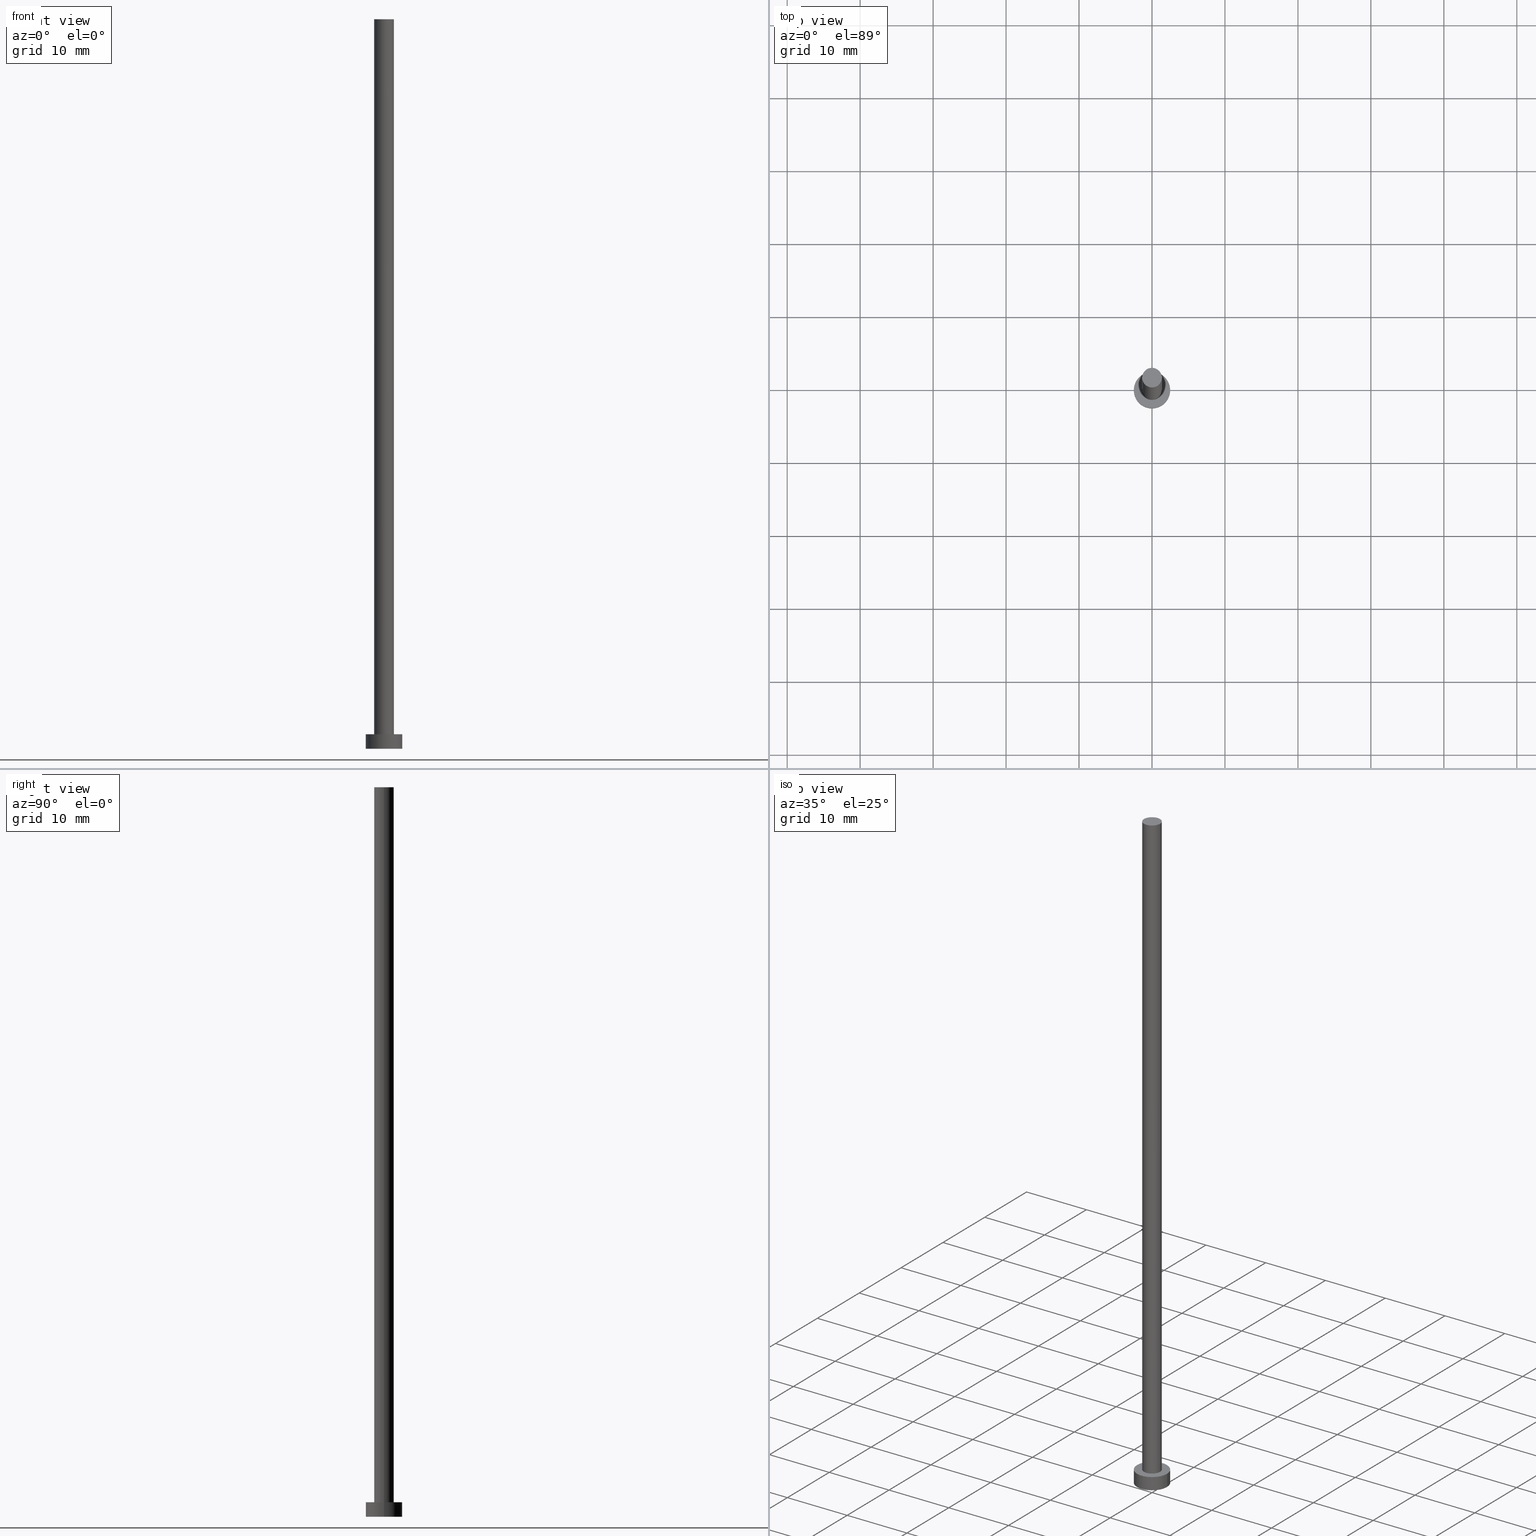
[diagram: canonical four-view strip — front | top / right | iso, engineering-drawing reading convention]
A machine part, canonical four-view strip (front | top / right | iso — engineering-drawing reading convention). The complete STEP part file that produces these views, byte-faithful:
ISO-10303-21;
HEADER;
FILE_DESCRIPTION (( 'STEP AP203' ),
    '1' );
FILE_NAME ('a402.STEP',
    '2026-02-06T12:31:36',
    ( '' ),
    ( '' ),
    'SwSTEP 2.0',
    'SolidWorks 2019',
    '' );
FILE_SCHEMA (( 'CONFIG_CONTROL_DESIGN' ));
ENDSEC;

DATA;
#1 = DATE_AND_TIME ( #91, #43 ) ;
#2 = SECURITY_CLASSIFICATION ( '', '', #29 ) ;
#3 = ORIENTED_EDGE ( 'NONE', *, *, #155, .F. ) ;
#4 =( NAMED_UNIT ( * ) PLANE_ANGLE_UNIT ( ) SI_UNIT ( $, .RADIAN. ) );
#5 = DIRECTION ( 'NONE',  ( 1.000000000000000000, 0.000000000000000000, 0.000000000000000000 ) ) ;
#6 = CARTESIAN_POINT ( 'NONE',  ( 0.000000000000000000, 0.000000000000000000, 100.0000000000000000 ) ) ;
#7 = COORDINATED_UNIVERSAL_TIME_OFFSET ( 1, 0, .AHEAD. ) ;
#8 = DIRECTION ( 'NONE',  ( 0.000000000000000000, 0.000000000000000000, 1.000000000000000000 ) ) ;
#9 = CARTESIAN_POINT ( 'NONE',  ( 0.000000000000000000, 0.000000000000000000, 100.0000000000000000 ) ) ;
#10 = ORIENTED_EDGE ( 'NONE', *, *, #236, .T. ) ;
#11 = PERSON_AND_ORGANIZATION ( #180, #253 ) ;
#12 = CARTESIAN_POINT ( 'NONE',  ( 2.500000000000000000, 3.061616997868383141E-16, 0.000000000000000000 ) ) ;
#13 = CYLINDRICAL_SURFACE ( 'NONE', #217, 1.350000000000000089 ) ;
#14 = VERTEX_POINT ( 'NONE', #79 ) ;
#15 = DATE_AND_TIME ( #250, #136 ) ;
#16 = PERSON_AND_ORGANIZATION ( #180, #253 ) ;
#17 = LINE ( 'NONE', #210, #116 ) ;
#18 = ADVANCED_FACE ( 'NONE', ( #38 ), #219, .T. ) ;
#19 = DIRECTION ( 'NONE',  ( -0.000000000000000000, -0.000000000000000000, -1.000000000000000000 ) ) ;
#20 = DIRECTION ( 'NONE',  ( -0.000000000000000000, -0.000000000000000000, -1.000000000000000000 ) ) ;
#21 = CIRCLE ( 'NONE', #58, 2.500000000000000000 ) ;
#22 = CC_DESIGN_SECURITY_CLASSIFICATION ( #2, ( #47 ) ) ;
#23 = CIRCLE ( 'NONE', #77, 1.350000000000000089 ) ;
#24 = MANIFOLD_SOLID_BREP ( 'P�idat vysunut�m3', #168 ) ;
#25 = ADVANCED_FACE ( 'NONE', ( #238 ), #103, .T. ) ;
#26 = AXIS2_PLACEMENT_3D ( 'NONE', #57, #92, #146 ) ;
#27 = DIRECTION ( 'NONE',  ( 0.000000000000000000, 0.000000000000000000, 1.000000000000000000 ) ) ;
#28 = EDGE_LOOP ( 'NONE', ( #111, #45 ) ) ;
#29 = SECURITY_CLASSIFICATION_LEVEL ( 'unclassified' ) ;
#30 = CARTESIAN_POINT ( 'NONE',  ( 0.000000000000000000, 0.000000000000000000, 100.0000000000000000 ) ) ;
#31 = ORIENTED_EDGE ( 'NONE', *, *, #251, .F. ) ;
#32 = DIRECTION ( 'NONE',  ( 1.000000000000000000, 0.000000000000000000, 0.000000000000000000 ) ) ;
#33 = ORIENTED_EDGE ( 'NONE', *, *, #198, .F. ) ;
#34 = PERSON_AND_ORGANIZATION ( #180, #253 ) ;
#35 = DIRECTION ( 'NONE',  ( 0.000000000000000000, 0.000000000000000000, 1.000000000000000000 ) ) ;
#36 = LINE ( 'NONE', #122, #196 ) ;
#37 = EDGE_CURVE ( 'NONE', #147, #177, #59, .T. ) ;
#38 = FACE_OUTER_BOUND ( 'NONE', #211, .T. ) ;
#39 = CIRCLE ( 'NONE', #89, 2.500000000000000000 ) ;
#40 = PLANE ( 'NONE',  #173 ) ;
#41 = LOCAL_TIME ( 13, 31, 36.00000000000000000, #231 ) ;
#42 = CC_DESIGN_PERSON_AND_ORGANIZATION_ASSIGNMENT ( #124, #101, ( #174 ) ) ;
#43 = LOCAL_TIME ( 13, 31, 36.00000000000000000, #53 ) ;
#44 = AXIS2_PLACEMENT_3D ( 'NONE', #62, #201, #99 ) ;
#45 = ORIENTED_EDGE ( 'NONE', *, *, #218, .F. ) ;
#46 = DIRECTION ( 'NONE',  ( 0.000000000000000000, 0.000000000000000000, 1.000000000000000000 ) ) ;
#47 = PRODUCT_DEFINITION_FORMATION_WITH_SPECIFIED_SOURCE ( 'LIBOVOLN�', '', #174, .NOT_KNOWN. ) ;
#48 = ORIENTED_EDGE ( 'NONE', *, *, #155, .T. ) ;
#49 = APPROVAL_DATE_TIME ( #121, #134 ) ;
#50 = FACE_OUTER_BOUND ( 'NONE', #142, .T. ) ;
#51 = CIRCLE ( 'NONE', #197, 1.350000000000000089 ) ;
#52 = ORIENTED_EDGE ( 'NONE', *, *, #186, .T. ) ;
#53 = COORDINATED_UNIVERSAL_TIME_OFFSET ( 1, 0, .AHEAD. ) ;
#54 = CC_DESIGN_PERSON_AND_ORGANIZATION_ASSIGNMENT ( #34, #73, ( #47 ) ) ;
#55 = PLANE ( 'NONE',  #61 ) ;
#56 = ORIENTED_EDGE ( 'NONE', *, *, #255, .F. ) ;
#57 = CARTESIAN_POINT ( 'NONE',  ( 0.000000000000000000, 0.000000000000000000, 2.000000000000000000 ) ) ;
#58 = AXIS2_PLACEMENT_3D ( 'NONE', #125, #46, #32 ) ;
#59 = CIRCLE ( 'NONE', #157, 1.350000000000000089 ) ;
#60 = AXIS2_PLACEMENT_3D ( 'NONE', #209, #27, #239 ) ;
#61 = AXIS2_PLACEMENT_3D ( 'NONE', #30, #144, #112 ) ;
#62 = CARTESIAN_POINT ( 'NONE',  ( 0.000000000000000000, 0.000000000000000000, 100.0000000000000000 ) ) ;
#63 =( LENGTH_UNIT ( ) NAMED_UNIT ( * ) SI_UNIT ( .MILLI., .METRE. ) );
#64 = CARTESIAN_POINT ( 'NONE',  ( 0.000000000000000000, 0.000000000000000000, 2.000000000000000000 ) ) ;
#65 = ORIENTED_EDGE ( 'NONE', *, *, #186, .F. ) ;
#66 = DIRECTION ( 'NONE',  ( 1.000000000000000000, 0.000000000000000000, -0.000000000000000000 ) ) ;
#67 = CC_DESIGN_APPROVAL ( #113, ( #47 ) ) ;
#68 = ADVANCED_FACE ( 'NONE', ( #50 ), #179, .T. ) ;
#69 = CARTESIAN_POINT ( 'NONE',  ( 2.500000000000000000, 3.061616997868383141E-16, 2.000000000000000000 ) ) ;
#70 = LOCAL_TIME ( 13, 31, 36.00000000000000000, #188 ) ;
#71 = ORIENTED_EDGE ( 'NONE', *, *, #205, .F. ) ;
#72 = DIRECTION ( 'NONE',  ( 0.000000000000000000, 0.000000000000000000, 1.000000000000000000 ) ) ;
#73 = PERSON_AND_ORGANIZATION_ROLE ( 'design_supplier' ) ;
#74 = APPROVAL_PERSON_ORGANIZATION ( #138, #113, #199 ) ;
#75 = CC_DESIGN_DATE_AND_TIME_ASSIGNMENT ( #104, #131, ( #2 ) ) ;
#76 = PRODUCT_DEFINITION_SHAPE ( 'NONE', 'NONE',  #153 ) ;
#77 = AXIS2_PLACEMENT_3D ( 'NONE', #9, #160, #5 ) ;
#78 = ADVANCED_FACE ( 'NONE', ( #149 ), #13, .T. ) ;
#79 = CARTESIAN_POINT ( 'NONE',  ( -2.500000000000000000, 0.000000000000000000, 2.000000000000000000 ) ) ;
#80 = DIRECTION ( 'NONE',  ( 1.000000000000000000, 0.000000000000000000, -0.000000000000000000 ) ) ;
#81 = DIRECTION ( 'NONE',  ( -0.000000000000000000, -0.000000000000000000, -1.000000000000000000 ) ) ;
#82 = ORIENTED_EDGE ( 'NONE', *, *, #135, .T. ) ;
#83 = PERSON_AND_ORGANIZATION ( #180, #253 ) ;
#84 = CARTESIAN_POINT ( 'NONE',  ( 0.000000000000000000, 0.000000000000000000, 0.000000000000000000 ) ) ;
#85 = EDGE_CURVE ( 'NONE', #177, #147, #23, .T. ) ;
#86 = CARTESIAN_POINT ( 'NONE',  ( 0.000000000000000000, 0.000000000000000000, 2.000000000000000000 ) ) ;
#87 = DATE_AND_TIME ( #178, #70 ) ;
#88 = DIRECTION ( 'NONE',  ( 1.000000000000000000, 0.000000000000000000, 0.000000000000000000 ) ) ;
#89 = AXIS2_PLACEMENT_3D ( 'NONE', #159, #8, #165 ) ;
#90 = ORIENTED_EDGE ( 'NONE', *, *, #255, .T. ) ;
#91 = CALENDAR_DATE ( 2026, 6, 2 ) ;
#92 = DIRECTION ( 'NONE',  ( 0.000000000000000000, 0.000000000000000000, 1.000000000000000000 ) ) ;
#93 = EDGE_LOOP ( 'NONE', ( #3, #163, #52, #126 ) ) ;
#94 = FACE_OUTER_BOUND ( 'NONE', #183, .T. ) ;
#95 = VECTOR ( 'NONE', #193, 1000.000000000000000 ) ;
#96 = APPROVAL_ROLE ( '' ) ;
#97 = COORDINATED_UNIVERSAL_TIME_OFFSET ( 1, 0, .AHEAD. ) ;
#98 = FACE_OUTER_BOUND ( 'NONE', #248, .T. ) ;
#99 = DIRECTION ( 'NONE',  ( -1.000000000000000000, 0.000000000000000000, 0.000000000000000000 ) ) ;
#100 = PERSON_AND_ORGANIZATION_ROLE ( 'classification_officer' ) ;
#101 = PERSON_AND_ORGANIZATION_ROLE ( 'design_owner' ) ;
#102 = CARTESIAN_POINT ( 'NONE',  ( 2.500000000000000000, 3.061616997868383141E-16, 2.000000000000000000 ) ) ;
#103 = CYLINDRICAL_SURFACE ( 'NONE', #44, 1.350000000000000089 ) ;
#104 = DATE_AND_TIME ( #172, #133 ) ;
#105 = DIRECTION ( 'NONE',  ( -1.000000000000000000, 0.000000000000000000, 0.000000000000000000 ) ) ;
#106 = VERTEX_POINT ( 'NONE', #240 ) ;
#107 = UNCERTAINTY_MEASURE_WITH_UNIT (LENGTH_MEASURE( 1.000000000000000082E-05 ), #63, 'distance_accuracy_value', 'NONE');
#108 = APPLICATION_PROTOCOL_DEFINITION ( 'international standard', 'config_control_design', 1994, #214 ) ;
#109 = DIRECTION ( 'NONE',  ( 0.000000000000000000, 0.000000000000000000, 1.000000000000000000 ) ) ;
#110 = AXIS2_PLACEMENT_3D ( 'NONE', #242, #35, #143 ) ;
#111 = ORIENTED_EDGE ( 'NONE', *, *, #200, .F. ) ;
#112 = DIRECTION ( 'NONE',  ( 1.000000000000000000, 0.000000000000000000, -0.000000000000000000 ) ) ;
#113 = APPROVAL ( #119, 'NEUR�EN�' ) ;
#114 = ADVANCED_BREP_SHAPE_REPRESENTATION ( 'a402', ( #24, #110 ), #190 ) ;
#115 = ADVANCED_FACE ( 'NONE', ( #162 ), #55, .T. ) ;
#116 = VECTOR ( 'NONE', #182, 1000.000000000000000 ) ;
#117 = VECTOR ( 'NONE', #145, 1000.000000000000000 ) ;
#118 = CC_DESIGN_PERSON_AND_ORGANIZATION_ASSIGNMENT ( #11, #100, ( #2 ) ) ;
#119 = APPROVAL_STATUS ( 'not_yet_approved' ) ;
#120 = EDGE_LOOP ( 'NONE', ( #244, #48, #130, #65 ) ) ;
#121 = DATE_AND_TIME ( #127, #41 ) ;
#122 = CARTESIAN_POINT ( 'NONE',  ( -1.350000000000000089, 0.000000000000000000, 100.0000000000000000 ) ) ;
#123 = VERTEX_POINT ( 'NONE', #229 ) ;
#124 = PERSON_AND_ORGANIZATION ( #180, #253 ) ;
#125 = CARTESIAN_POINT ( 'NONE',  ( 0.000000000000000000, 0.000000000000000000, 0.000000000000000000 ) ) ;
#126 = ORIENTED_EDGE ( 'NONE', *, *, #200, .T. ) ;
#127 = CALENDAR_DATE ( 2026, 6, 2 ) ;
#128 = DIRECTION ( 'NONE',  ( 0.000000000000000000, 0.000000000000000000, 1.000000000000000000 ) ) ;
#129 = CARTESIAN_POINT ( 'NONE',  ( 1.350000000000000089, 1.653273178848926867E-16, 100.0000000000000000 ) ) ;
#130 = ORIENTED_EDGE ( 'NONE', *, *, #218, .T. ) ;
#131 = DATE_TIME_ROLE ( 'classification_date' ) ;
#132 = FACE_BOUND ( 'NONE', #28, .T. ) ;
#133 = LOCAL_TIME ( 13, 31, 36.00000000000000000, #7 ) ;
#134 = APPROVAL ( #140, 'NEUR�EN�' ) ;
#135 = EDGE_CURVE ( 'NONE', #204, #223, #21, .T. ) ;
#136 = LOCAL_TIME ( 13, 31, 36.00000000000000000, #97 ) ;
#137 = APPROVAL_PERSON_ORGANIZATION ( #181, #175, #96 ) ;
#138 = PERSON_AND_ORGANIZATION ( #180, #253 ) ;
#139 = VERTEX_POINT ( 'NONE', #102 ) ;
#140 = APPROVAL_STATUS ( 'not_yet_approved' ) ;
#141 = CARTESIAN_POINT ( 'NONE',  ( -1.350000000000000089, 0.000000000000000000, 100.0000000000000000 ) ) ;
#142 = EDGE_LOOP ( 'NONE', ( #56, #187, #10, #31 ) ) ;
#143 = DIRECTION ( 'NONE',  ( 1.000000000000000000, 0.000000000000000000, 0.000000000000000000 ) ) ;
#144 = DIRECTION ( 'NONE',  ( 0.000000000000000000, 0.000000000000000000, 1.000000000000000000 ) ) ;
#145 = DIRECTION ( 'NONE',  ( -0.000000000000000000, -0.000000000000000000, -1.000000000000000000 ) ) ;
#146 = DIRECTION ( 'NONE',  ( 1.000000000000000000, 0.000000000000000000, 0.000000000000000000 ) ) ;
#147 = VERTEX_POINT ( 'NONE', #141 ) ;
#148 = PRODUCT_RELATED_PRODUCT_CATEGORY ( 'detail', '', ( #174 ) ) ;
#149 = FACE_OUTER_BOUND ( 'NONE', #93, .T. ) ;
#150 = APPROVAL_DATE_TIME ( #15, #113 ) ;
#151 = APPROVAL_PERSON_ORGANIZATION ( #83, #134, #241 ) ;
#152 = CIRCLE ( 'NONE', #26, 1.350000000000000089 ) ;
#153 = PRODUCT_DEFINITION ( 'NEZN�M�', '', #47, #224 ) ;
#154 = AXIS2_PLACEMENT_3D ( 'NONE', #185, #72, #88 ) ;
#155 = EDGE_CURVE ( 'NONE', #177, #123, #17, .T. ) ;
#156 = CARTESIAN_POINT ( 'NONE',  ( -2.500000000000000000, 0.000000000000000000, 2.000000000000000000 ) ) ;
#157 = AXIS2_PLACEMENT_3D ( 'NONE', #6, #221, #226 ) ;
#158 = ORIENTED_EDGE ( 'NONE', *, *, #251, .T. ) ;
#159 = CARTESIAN_POINT ( 'NONE',  ( 0.000000000000000000, 0.000000000000000000, 0.000000000000000000 ) ) ;
#160 = DIRECTION ( 'NONE',  ( 0.000000000000000000, 0.000000000000000000, 1.000000000000000000 ) ) ;
#161 = ORIENTED_EDGE ( 'NONE', *, *, #135, .F. ) ;
#162 = FACE_OUTER_BOUND ( 'NONE', #192, .T. ) ;
#163 = ORIENTED_EDGE ( 'NONE', *, *, #37, .F. ) ;
#164 = PERSON_AND_ORGANIZATION_ROLE ( 'creator' ) ;
#165 = DIRECTION ( 'NONE',  ( 1.000000000000000000, 0.000000000000000000, 0.000000000000000000 ) ) ;
#166 = DIRECTION ( 'NONE',  ( 1.000000000000000000, 0.000000000000000000, 0.000000000000000000 ) ) ;
#167 = CC_DESIGN_PERSON_AND_ORGANIZATION_ASSIGNMENT ( #16, #228, ( #153 ) ) ;
#168 = CLOSED_SHELL ( 'NONE', ( #25, #68, #18, #222, #194, #78, #115 ) ) ;
#169 = ORIENTED_EDGE ( 'NONE', *, *, #236, .F. ) ;
#170 = CARTESIAN_POINT ( 'NONE',  ( 0.000000000000000000, 0.000000000000000000, 2.000000000000000000 ) ) ;
#171 = DIRECTION ( 'NONE',  ( -1.000000000000000000, 0.000000000000000000, 0.000000000000000000 ) ) ;
#172 = CALENDAR_DATE ( 2026, 6, 2 ) ;
#173 = AXIS2_PLACEMENT_3D ( 'NONE', #84, #243, #66 ) ;
#174 = PRODUCT ( 'a402', 'a402', '', ( #202 ) ) ;
#175 = APPROVAL ( #184, 'NEUR�EN�' ) ;
#176 = AXIS2_PLACEMENT_3D ( 'NONE', #64, #128, #80 ) ;
#177 = VERTEX_POINT ( 'NONE', #129 ) ;
#178 = CALENDAR_DATE ( 2026, 6, 2 ) ;
#179 = CYLINDRICAL_SURFACE ( 'NONE', #191, 2.500000000000000000 ) ;
#180 = PERSON ( 'NEUR�EN�', 'NEUR�EN�', 'NEUR�EN�', ('NEUR�EN�'), ('NEUR�EN�'), ('NEUR�EN�') ) ;
#181 = PERSON_AND_ORGANIZATION ( #180, #253 ) ;
#182 = DIRECTION ( 'NONE',  ( -0.000000000000000000, -0.000000000000000000, -1.000000000000000000 ) ) ;
#183 = EDGE_LOOP ( 'NONE', ( #227, #90 ) ) ;
#184 = APPROVAL_STATUS ( 'not_yet_approved' ) ;
#185 = CARTESIAN_POINT ( 'NONE',  ( 0.000000000000000000, 0.000000000000000000, 2.000000000000000000 ) ) ;
#186 = EDGE_CURVE ( 'NONE', #147, #106, #36, .T. ) ;
#187 = ORIENTED_EDGE ( 'NONE', *, *, #205, .T. ) ;
#188 = COORDINATED_UNIVERSAL_TIME_OFFSET ( 1, 0, .AHEAD. ) ;
#189 = LINE ( 'NONE', #69, #95 ) ;
#190 =( GEOMETRIC_REPRESENTATION_CONTEXT ( 3 ) GLOBAL_UNCERTAINTY_ASSIGNED_CONTEXT ( ( #107 ) ) GLOBAL_UNIT_ASSIGNED_CONTEXT ( ( #63, #4, #220 ) ) REPRESENTATION_CONTEXT ( 'NONE', 'WORKASPACE' ) );
#191 = AXIS2_PLACEMENT_3D ( 'NONE', #170, #203, #105 ) ;
#192 = EDGE_LOOP ( 'NONE', ( #230, #208 ) ) ;
#193 = DIRECTION ( 'NONE',  ( -0.000000000000000000, -0.000000000000000000, -1.000000000000000000 ) ) ;
#194 = ADVANCED_FACE ( 'NONE', ( #98 ), #40, .F. ) ;
#195 = CC_DESIGN_DATE_AND_TIME_ASSIGNMENT ( #1, #237, ( #153 ) ) ;
#196 = VECTOR ( 'NONE', #81, 1000.000000000000000 ) ;
#197 = AXIS2_PLACEMENT_3D ( 'NONE', #232, #109, #166 ) ;
#198 = EDGE_CURVE ( 'NONE', #14, #139, #235, .T. ) ;
#199 = APPROVAL_ROLE ( '' ) ;
#200 = EDGE_CURVE ( 'NONE', #106, #123, #51, .T. ) ;
#201 = DIRECTION ( 'NONE',  ( -0.000000000000000000, -0.000000000000000000, -1.000000000000000000 ) ) ;
#202 = MECHANICAL_CONTEXT ( 'NONE', #214, 'mechanical' ) ;
#203 = DIRECTION ( 'NONE',  ( -0.000000000000000000, -0.000000000000000000, -1.000000000000000000 ) ) ;
#204 = VERTEX_POINT ( 'NONE', #247 ) ;
#205 = EDGE_CURVE ( 'NONE', #139, #223, #189, .T. ) ;
#206 = APPLICATION_PROTOCOL_DEFINITION ( 'international standard', 'config_control_design', 1994, #252 ) ;
#207 = DIRECTION ( 'NONE',  ( -1.000000000000000000, 0.000000000000000000, 0.000000000000000000 ) ) ;
#208 = ORIENTED_EDGE ( 'NONE', *, *, #85, .T. ) ;
#209 = CARTESIAN_POINT ( 'NONE',  ( 0.000000000000000000, 0.000000000000000000, 2.000000000000000000 ) ) ;
#210 = CARTESIAN_POINT ( 'NONE',  ( 1.350000000000000089, 1.653273178848926867E-16, 100.0000000000000000 ) ) ;
#211 = EDGE_LOOP ( 'NONE', ( #71, #33, #158, #82 ) ) ;
#212 = PLANE ( 'NONE',  #176 ) ;
#213 = AXIS2_PLACEMENT_3D ( 'NONE', #86, #19, #171 ) ;
#214 = APPLICATION_CONTEXT ( 'configuration controlled 3d designs of mechanical parts and assemblies' ) ;
#215 = CC_DESIGN_APPROVAL ( #175, ( #153 ) ) ;
#216 = CC_DESIGN_PERSON_AND_ORGANIZATION_ASSIGNMENT ( #245, #164, ( #47 ) ) ;
#217 = AXIS2_PLACEMENT_3D ( 'NONE', #249, #20, #207 ) ;
#218 = EDGE_CURVE ( 'NONE', #123, #106, #152, .T. ) ;
#219 = CYLINDRICAL_SURFACE ( 'NONE', #213, 2.500000000000000000 ) ;
#220 =( NAMED_UNIT ( * ) SI_UNIT ( $, .STERADIAN. ) SOLID_ANGLE_UNIT ( ) );
#221 = DIRECTION ( 'NONE',  ( 0.000000000000000000, 0.000000000000000000, 1.000000000000000000 ) ) ;
#222 = ADVANCED_FACE ( 'NONE', ( #132, #94 ), #212, .T. ) ;
#223 = VERTEX_POINT ( 'NONE', #12 ) ;
#224 = DESIGN_CONTEXT ( 'detailed design', #252, 'design' ) ;
#225 = LINE ( 'NONE', #156, #117 ) ;
#226 = DIRECTION ( 'NONE',  ( 1.000000000000000000, 0.000000000000000000, 0.000000000000000000 ) ) ;
#227 = ORIENTED_EDGE ( 'NONE', *, *, #198, .T. ) ;
#228 = PERSON_AND_ORGANIZATION_ROLE ( 'creator' ) ;
#229 = CARTESIAN_POINT ( 'NONE',  ( 1.350000000000000089, 1.653273178848926867E-16, 2.000000000000000000 ) ) ;
#230 = ORIENTED_EDGE ( 'NONE', *, *, #37, .T. ) ;
#231 = COORDINATED_UNIVERSAL_TIME_OFFSET ( 1, 0, .AHEAD. ) ;
#232 = CARTESIAN_POINT ( 'NONE',  ( 0.000000000000000000, 0.000000000000000000, 2.000000000000000000 ) ) ;
#233 = SHAPE_DEFINITION_REPRESENTATION ( #76, #114 ) ;
#234 = CIRCLE ( 'NONE', #60, 2.500000000000000000 ) ;
#235 = CIRCLE ( 'NONE', #154, 2.500000000000000000 ) ;
#236 = EDGE_CURVE ( 'NONE', #223, #204, #39, .T. ) ;
#237 = DATE_TIME_ROLE ( 'creation_date' ) ;
#238 = FACE_OUTER_BOUND ( 'NONE', #120, .T. ) ;
#239 = DIRECTION ( 'NONE',  ( 1.000000000000000000, 0.000000000000000000, 0.000000000000000000 ) ) ;
#240 = CARTESIAN_POINT ( 'NONE',  ( -1.350000000000000089, 0.000000000000000000, 2.000000000000000000 ) ) ;
#241 = APPROVAL_ROLE ( '' ) ;
#242 = CARTESIAN_POINT ( 'NONE',  ( 0.000000000000000000, 0.000000000000000000, 0.000000000000000000 ) ) ;
#243 = DIRECTION ( 'NONE',  ( 0.000000000000000000, 0.000000000000000000, 1.000000000000000000 ) ) ;
#244 = ORIENTED_EDGE ( 'NONE', *, *, #85, .F. ) ;
#245 = PERSON_AND_ORGANIZATION ( #180, #253 ) ;
#246 = APPROVAL_DATE_TIME ( #87, #175 ) ;
#247 = CARTESIAN_POINT ( 'NONE',  ( -2.500000000000000000, 0.000000000000000000, 0.000000000000000000 ) ) ;
#248 = EDGE_LOOP ( 'NONE', ( #161, #169 ) ) ;
#249 = CARTESIAN_POINT ( 'NONE',  ( 0.000000000000000000, 0.000000000000000000, 100.0000000000000000 ) ) ;
#250 = CALENDAR_DATE ( 2026, 6, 2 ) ;
#251 = EDGE_CURVE ( 'NONE', #14, #204, #225, .T. ) ;
#252 = APPLICATION_CONTEXT ( 'configuration controlled 3d designs of mechanical parts and assemblies' ) ;
#253 = ORGANIZATION ( 'NEUR�EN�', 'NEUR�EN�', '' ) ;
#254 = CC_DESIGN_APPROVAL ( #134, ( #2 ) ) ;
#255 = EDGE_CURVE ( 'NONE', #139, #14, #234, .T. ) ;
ENDSEC;
END-ISO-10303-21;
